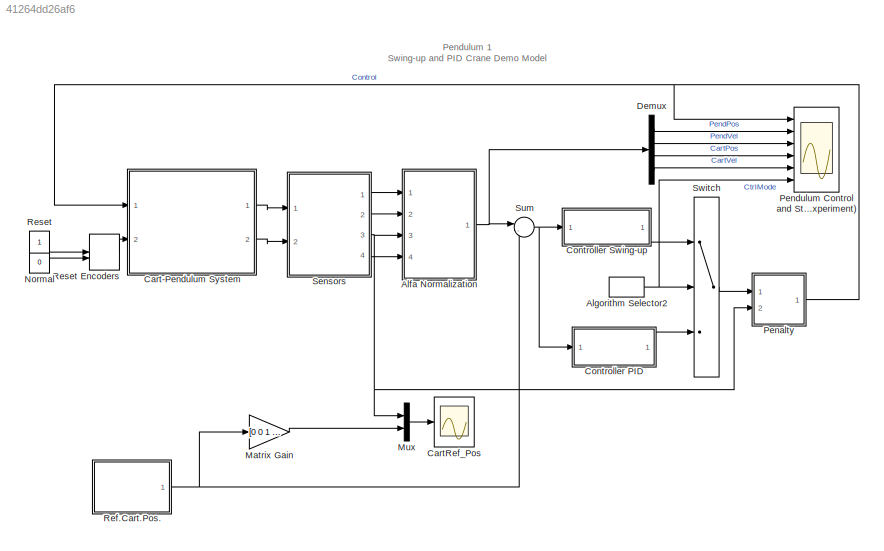
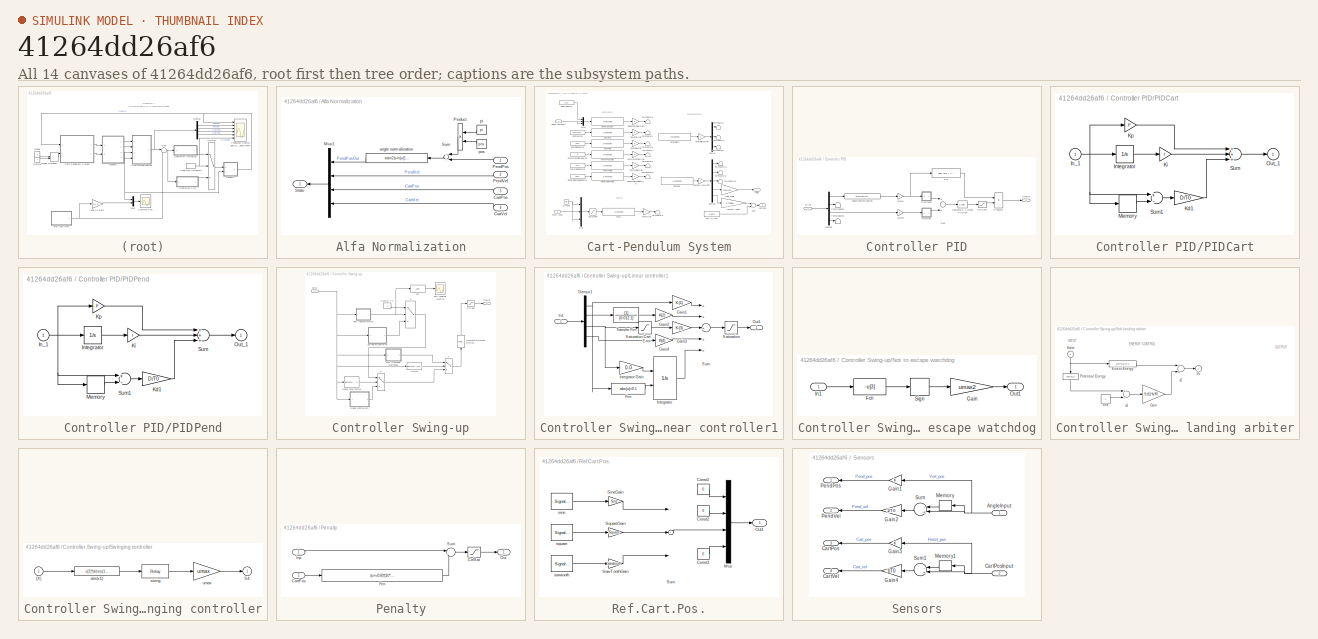
[diagram: thumbnail index - all 14 canvases of the model, root first then tree order]
MODEL slx_41264dd26af6
KIND model
CONFIG AbsTol = 1e-6
CONFIG FixedStep = 0.01
CONFIG MaxStep = auto
CONFIG MinStep = auto
CONFIG RelTol = 1e-3
CONFIG SampleTimeConstraint = Unconstrained
CONFIG Solver = ode5
CONFIG SolverMode = SingleTasking
CONFIG SolverName = ode5
CONFIG StartTime = 0.0
CONFIG StopTime = 9999
BLOCK [SubSystem] Alfa Normalization
  Ports = [4, 1]
  RequestExecContextInheritance = off
BLOCK [Inport] Alfa Normalization/CartPos
  IconDisplay = Port number
  Port = 3
BLOCK [Inport] Alfa Normalization/CartVel
  IconDisplay = Port number
  Port = 4
BLOCK [Mux] Alfa Normalization/Mux1
  Ports = [4, 1]
BLOCK [Inport] Alfa Normalization/PendPos
  IconDisplay = Port number
BLOCK [Inport] Alfa Normalization/PendVel
  IconDisplay = Port number
  Port = 2
BLOCK [Product] Alfa Normalization/Product
  Ports = [2, 1]
  RndMeth = Floor
BLOCK [Outport] Alfa Normalization/State
  IconDisplay = Port number
  InitialOutput = 0
BLOCK [Sum] Alfa Normalization/Sum
  Ports = [2, 1]
BLOCK [Fcn] Alfa Normalization/angle normalization
  Expr = atan2(sin(u[1]),cos(u[1]))
BLOCK [Constant] Alfa Normalization/pi
  Value = pi
BLOCK [Constant] Alfa Normalization/pos
  Value = pos
BLOCK [DiscretePulseGenerator] Algorithm Selector2
  Period = 60
  Ports = [0, 1]
  PulseType = Time based
  PulseWidth = 85
  SampleTime = 0.01
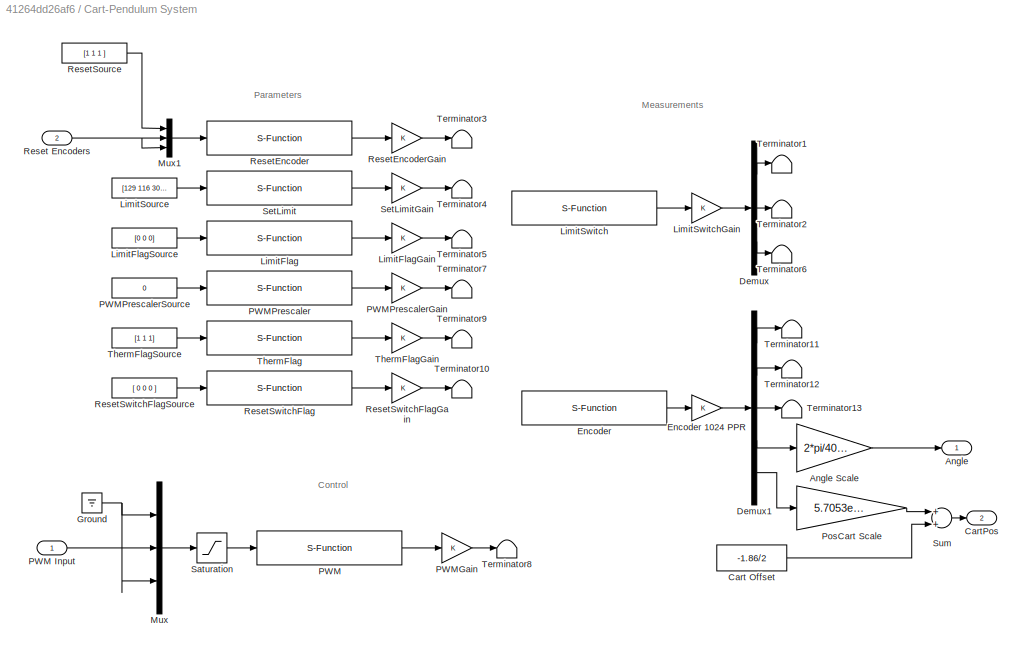
BLOCK [SubSystem] Cart-Pendulum System
  Ports = [2, 2]
  RequestExecContextInheritance = off
BLOCK [Outport] Cart-Pendulum System/Angle
  IconDisplay = Port number
BLOCK [Gain] Cart-Pendulum System/Angle Scale
  Gain = 2*pi/4096
  SaturateOnIntegerOverflow = off
BLOCK [Constant] Cart-Pendulum System/Cart Offset
  Value = -1.86/2
BLOCK [Outport] Cart-Pendulum System/CartPos
  IconDisplay = Port number
  Port = 2
BLOCK [Demux] Cart-Pendulum System/Demux
  Outputs = 3
  Ports = [1, 3]
BLOCK [Demux] Cart-Pendulum System/Demux1
  Outputs = 5
  Ports = [1, 5]
BLOCK [S-Function] Cart-Pendulum System/Encoder
  FunctionName = P1_Encoder
  Parameters = BaseAddress, T0
  Ports = [0, 1]
BLOCK [Gain] Cart-Pendulum System/Encoder 1024 PPR
BLOCK [Ground] Cart-Pendulum System/Ground
BLOCK [S-Function] Cart-Pendulum System/LimitFlag
  FunctionName = P1_LimitFlag
  Parameters = BaseAddress, T0
  Ports = [1, 1]
BLOCK [Gain] Cart-Pendulum System/LimitFlagGain
BLOCK [Constant] Cart-Pendulum System/LimitFlagSource
  Value = [0 0 0]
BLOCK [Constant] Cart-Pendulum System/LimitSource
  Value = [129 116 300]
BLOCK [S-Function] Cart-Pendulum System/LimitSwitch
  FunctionName = P1_Switch
  Parameters = BaseAddress, T0
  Ports = [0, 1]
BLOCK [Gain] Cart-Pendulum System/LimitSwitchGain
BLOCK [Mux] Cart-Pendulum System/Mux
  Inputs = 3
  Ports = [3, 1]
BLOCK [Mux] Cart-Pendulum System/Mux1
  DisplayOption = bar
  Inputs = [3 1 1]
  Ports = [3, 1]
BLOCK [S-Function] Cart-Pendulum System/PWM
  FunctionName = P1_PWM
  Parameters = BaseAddress, T0
  Ports = [1, 1]
BLOCK [Inport] Cart-Pendulum System/PWM Input
  IconDisplay = Port number
BLOCK [Gain] Cart-Pendulum System/PWMGain
BLOCK [S-Function] Cart-Pendulum System/PWMPrescaler
  FunctionName = P1_PWMPrescaler
  Parameters = BaseAddress, T0
  Ports = [1, 1]
BLOCK [Gain] Cart-Pendulum System/PWMPrescalerGain
BLOCK [Constant] Cart-Pendulum System/PWMPrescalerSource
  Value = 0
BLOCK [Gain] Cart-Pendulum System/PosCart Scale
  Gain = 5.7053e-005
  SaturateOnIntegerOverflow = off
BLOCK [Inport] Cart-Pendulum System/Reset Encoders
  IconDisplay = Port number
  Port = 2
BLOCK [S-Function] Cart-Pendulum System/ResetEncoder
  FunctionName = P1_ResetEncoder
  Parameters = BaseAddress, T0
  Ports = [1, 1]
BLOCK [Gain] Cart-Pendulum System/ResetEncoderGain
BLOCK [Constant] Cart-Pendulum System/ResetSource
  Value = [1 1 1 ]
BLOCK [S-Function] Cart-Pendulum System/ResetSwitchFlag 
  FunctionName = P1_ResetSwitchFlag
  Parameters = BaseAddress, T0
  Ports = [1, 1]
BLOCK [Gain] Cart-Pendulum System/ResetSwitchFlagGain
BLOCK [Constant] Cart-Pendulum System/ResetSwitchFlagSource
  Value = [ 0 0 0 ]
BLOCK [Saturate] Cart-Pendulum System/Saturation
  InputPortMap = u0
  Ports = [1, 1]
BLOCK [S-Function] Cart-Pendulum System/SetLimit
  FunctionName = P1_SetLimit
  Parameters = BaseAddress, T0
  Ports = [1, 1]
BLOCK [Gain] Cart-Pendulum System/SetLimitGain
BLOCK [Sum] Cart-Pendulum System/Sum
  Ports = [2, 1]
BLOCK [Terminator] Cart-Pendulum System/Terminator1
BLOCK [Terminator] Cart-Pendulum System/Terminator10
BLOCK [Terminator] Cart-Pendulum System/Terminator11
BLOCK [Terminator] Cart-Pendulum System/Terminator12
BLOCK [Terminator] Cart-Pendulum System/Terminator13
BLOCK [Terminator] Cart-Pendulum System/Terminator2
BLOCK [Terminator] Cart-Pendulum System/Terminator3
BLOCK [Terminator] Cart-Pendulum System/Terminator4
BLOCK [Terminator] Cart-Pendulum System/Terminator5
BLOCK [Terminator] Cart-Pendulum System/Terminator6
BLOCK [Terminator] Cart-Pendulum System/Terminator7
BLOCK [Terminator] Cart-Pendulum System/Terminator8
BLOCK [Terminator] Cart-Pendulum System/Terminator9
BLOCK [S-Function] Cart-Pendulum System/ThermFlag 
  FunctionName = P1_ThermFlag
  Parameters = BaseAddress, T0
  Ports = [1, 1]
BLOCK [Gain] Cart-Pendulum System/ThermFlagGain
BLOCK [Constant] Cart-Pendulum System/ThermFlagSource
  Value = [1 1 1]
BLOCK [Scope] CartRef_Pos
  DataFormat = StructureWithTime
  ExtModeUploadOption = log
  Floating = off
  MaxDataPoints = 50000
  NumInputPorts = 1
  Ports = [1]
  SampleTime = 0
  SaveName = Cart_refpos
  SaveToWorkspace = on
  TimeRange = 60
  YMax = 0.55
  YMin = -0.3
BLOCK [SubSystem] Controller PID
  Ports = [1, 1]
  RequestExecContextInheritance = off
BLOCK [Outport] Controller PID/Control
  IconDisplay = Port number
  InitialOutput = 0
BLOCK [Reference] Controller PID/Coulomb & Viscous Friction  REF=simulink/Discontinuities/Coulomb &
Viscous Friction
  Ports = [1, 1]
  SourceBlock = simulink/Discontinuities/Coulomb &\nViscous Friction
  SourceType = Coulombic and Viscous Friction
  gain = 1
  offset = Friction
BLOCK [Saturate] Controller PID/CtrlSat1
  InputPortMap = u0
  LowerLimit = -Umax
  Ports = [1, 1]
  UpperLimit = Umax
BLOCK [Demux] Controller PID/Demux
  Ports = [1, 4]
BLOCK [Inport] Controller PID/Error
  IconDisplay = Port number
BLOCK [Fcn] Controller PID/Fcn
  Expr = abs( u[1] ) < zone
BLOCK [Gain] Controller PID/Gain1
BLOCK [Gain] Controller PID/Gain3
BLOCK [SubSystem] Controller PID/PIDCart
  Ports = [1, 1]
  RequestExecContextInheritance = off
BLOCK [Inport] Controller PID/PIDCart/In_1
  IconDisplay = Port number
BLOCK [Integrator] Controller PID/PIDCart/Integrator
  LimitOutput = on
  LowerSaturationLimit = -1
  Ports = [1, 1]
  UpperSaturationLimit = 1
BLOCK [Gain] Controller PID/PIDCart/Kd1
  Gain = D/T0
BLOCK [Gain] Controller PID/PIDCart/Ki
  Gain = I
BLOCK [Gain] Controller PID/PIDCart/Kp
  Gain = P
BLOCK [Memory] Controller PID/PIDCart/Memory
BLOCK [Outport] Controller PID/PIDCart/Out_1
  IconDisplay = Port number
  InitialOutput = 0
BLOCK [Sum] Controller PID/PIDCart/Sum
  Inputs = +++
  Ports = [3, 1]
BLOCK [Sum] Controller PID/PIDCart/Sum1
  Inputs = +-
  Ports = [2, 1]
BLOCK [SubSystem] Controller PID/PIDPend
  Ports = [1, 1]
  RequestExecContextInheritance = off
BLOCK [Inport] Controller PID/PIDPend/In_1
  IconDisplay = Port number
BLOCK [Integrator] Controller PID/PIDPend/Integrator
  LimitOutput = on
  LowerSaturationLimit = -1
  Ports = [1, 1]
  UpperSaturationLimit = 1
BLOCK [Gain] Controller PID/PIDPend/Kd1
  Gain = D/T0
BLOCK [Gain] Controller PID/PIDPend/Ki
  Gain = I
BLOCK [Gain] Controller PID/PIDPend/Kp
  Gain = P
BLOCK [Memory] Controller PID/PIDPend/Memory
BLOCK [Outport] Controller PID/PIDPend/Out_1
  IconDisplay = Port number
  InitialOutput = 0
BLOCK [Sum] Controller PID/PIDPend/Sum
  Inputs = +++
  Ports = [3, 1]
BLOCK [Sum] Controller PID/PIDPend/Sum1
  Inputs = +-
  Ports = [2, 1]
BLOCK [Product] Controller PID/Product1
  Ports = [2, 1]
  RndMeth = Floor
BLOCK [Sum] Controller PID/Sum
  Ports = [2, 1]
BLOCK [Terminator] Controller PID/Terminator1
BLOCK [Terminator] Controller PID/Terminator2
BLOCK [Fcn] Controller PID/angle normalization
  Expr = atan2(sin(u+pi),cos(u+pi))
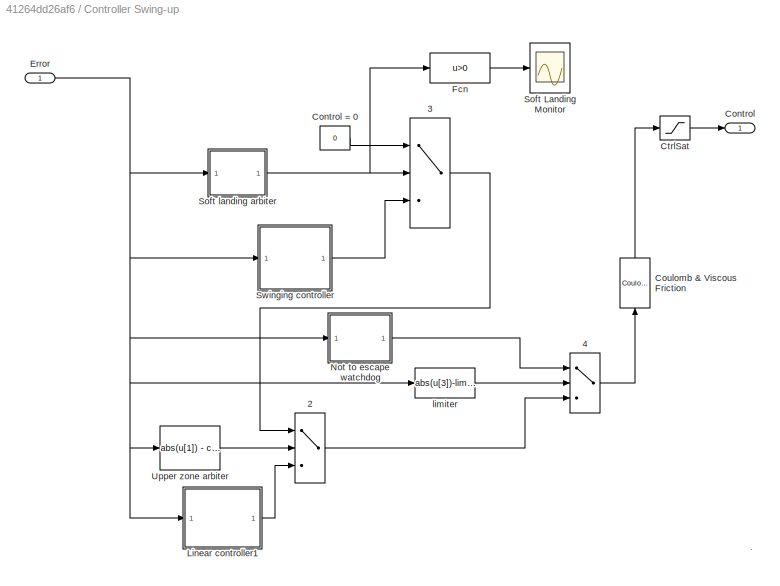
BLOCK [SubSystem] Controller Swing-up
  Ports = [1, 1]
  RequestExecContextInheritance = off
BLOCK [Switch] Controller Swing-up/2
BLOCK [Switch] Controller Swing-up/3
BLOCK [Switch] Controller Swing-up/4
BLOCK [Outport] Controller Swing-up/Control
  IconDisplay = Port number
  InitialOutput = 0
BLOCK [Constant] Controller Swing-up/Control = 0
  Value = 0
BLOCK [Reference] Controller Swing-up/Coulomb & Viscous Friction  REF=simulink/Discontinuities/Coulomb &
Viscous Friction
  Ports = [1, 1]
  SourceBlock = simulink/Discontinuities/Coulomb &\nViscous Friction
  SourceType = Coulombic and Viscous Friction
  gain = 1
  offset = 0.01
BLOCK [Saturate] Controller Swing-up/CtrlSat
  InputPortMap = u0
  LowerLimit = -1
  Ports = [1, 1]
  UpperLimit = 1
BLOCK [Inport] Controller Swing-up/Error
  IconDisplay = Port number
BLOCK [Fcn] Controller Swing-up/Fcn
  Expr = u>0
BLOCK [SubSystem] Controller Swing-up/Linear controller1
  Ports = [1, 1]
  RequestExecContextInheritance = off
BLOCK [Demux] Controller Swing-up/Linear controller1/Demux1
  Ports = [1, 4]
BLOCK [Fcn] Controller Swing-up/Linear controller1/Fcn
  Expr = abs(u)<0.1
BLOCK [Gain] Controller Swing-up/Linear controller1/Gain1
  Gain = K(1)
BLOCK [Gain] Controller Swing-up/Linear controller1/Gain2
  Gain = K(2)
BLOCK [Gain] Controller Swing-up/Linear controller1/Gain3
  Gain = K(3)
BLOCK [Gain] Controller Swing-up/Linear controller1/Gain4
  Gain = K(4)
BLOCK [Inport] Controller Swing-up/Linear controller1/In1
  IconDisplay = Port number
BLOCK [Integrator] Controller Swing-up/Linear controller1/Integrator
  ExternalReset = rising
  LimitOutput = on
  LowerSaturationLimit = -0.2
  Ports = [2, 1]
  UpperSaturationLimit = 0.2
BLOCK [Gain] Controller Swing-up/Linear controller1/Integrator Gain
  Gain = 0.0
BLOCK [Outport] Controller Swing-up/Linear controller1/Out1
  IconDisplay = Port number
  InitialOutput = 0
BLOCK [Saturate] Controller Swing-up/Linear controller1/Saturation
  InputPortMap = u0
  LowerLimit = -umax1
  Ports = [1, 1]
  UpperLimit = umax1
BLOCK [Saturate] Controller Swing-up/Linear controller1/Saturation Cart Error
  InputPortMap = u0
  LowerLimit = -0.1
  Ports = [1, 1]
  UpperLimit = 0.1
BLOCK [Sum] Controller Swing-up/Linear controller1/Sum
  Inputs = +++++
  Ports = [5, 1]
BLOCK [TransferFcn] Controller Swing-up/Linear controller1/Transfer Fcn
  Denominator = [0.012 1]
BLOCK [SubSystem] Controller Swing-up/Not to escape watchdog
  Ports = [1, 1]
  RequestExecContextInheritance = off
BLOCK [Fcn] Controller Swing-up/Not to escape watchdog/Fcn
  Expr = -u[3]
BLOCK [Gain] Controller Swing-up/Not to escape watchdog/Gain
  Gain = umax2
BLOCK [Inport] Controller Swing-up/Not to escape watchdog/In1
  IconDisplay = Port number
BLOCK [Outport] Controller Swing-up/Not to escape watchdog/Out1
  IconDisplay = Port number
  InitialOutput = 0
BLOCK [Signum] Controller Swing-up/Not to escape watchdog/Sign
BLOCK [Scope] Controller Swing-up/Soft Landing Monitor
  DataFormat = StructureWithTime
  ExtModeLoggingTrig = on
  ExtModeUploadOption = log
  Floating = off
  MaxDataPoints = 50000
  NumInputPorts = 1
  Ports = [1]
  SampleTime = 0
  SaveToWorkspace = on
  TimeRange = 60
  YMax = 1
  YMin = 0
BLOCK [SubSystem] Controller Swing-up/Soft landing arbiter
  Ports = [1, 1]
  RequestExecContextInheritance = off
  ShowPortLabels = none
BLOCK [Gain] Controller Swing-up/Soft landing arbiter/Gain
  Gain = 9.81*k*R
BLOCK [Fcn] Controller Swing-up/Soft landing arbiter/Kinetic Energy
  Expr = u[2]*u[2]*0.5
BLOCK [Fcn] Controller Swing-up/Soft landing arbiter/Potential Energy
  Expr = cos(u[1])
BLOCK [Outport] Controller Swing-up/Soft landing arbiter/S5
  IconDisplay = Port number
  InitialOutput = 0
BLOCK [Inport] Controller Swing-up/Soft landing arbiter/State
  IconDisplay = Port number
BLOCK [Constant] Controller Swing-up/Soft landing arbiter/one 
BLOCK [Sum] Controller Swing-up/Soft landing arbiter/s2
  Ports = [2, 1]
BLOCK [Sum] Controller Swing-up/Soft landing arbiter/s3
  Inputs = +-
  Ports = [2, 1]
BLOCK [SubSystem] Controller Swing-up/Swinging controller
  Ports = [1, 1]
  RequestExecContextInheritance = off
  ShowPortLabels = none
BLOCK [Outport] Controller Swing-up/Swinging controller/S4
  IconDisplay = Port number
  InitialOutput = 0
BLOCK [Inport] Controller Swing-up/Swinging controller/[X]
  IconDisplay = Port number
BLOCK [Fcn] Controller Swing-up/Swinging controller/abs(x1)
  Expr = u[2]*(abs(u[1])-pi/2)
BLOCK [Relay] Controller Swing-up/Swinging controller/swing
  OffOutputValue = -1
BLOCK [Gain] Controller Swing-up/Swinging controller/umax
  Gain = umax
BLOCK [Fcn] Controller Swing-up/Upper zone arbiter
  Expr = abs(u[1]) - cone
BLOCK [Fcn] Controller Swing-up/limiter
  Expr = abs(u[3])-limit
BLOCK [Demux] Demux
  Ports = [1, 4]
BLOCK [Gain] Matrix Gain
  Gain = [0 0 1 0]
  Multiplication = Matrix(K*u)
BLOCK [Mux] Mux
  DisplayOption = bar
  Inputs = 2
  Ports = [2, 1]
BLOCK [Constant] Normal
  Value = 0
BLOCK [SubSystem] Penalty
  Ports = [2, 1]
  RequestExecContextInheritance = off
BLOCK [Inport] Penalty/CartPos
  IconDisplay = Port number
  Port = 2
BLOCK [Saturate] Penalty/CtrlSat
  InputPortMap = u0
  LowerLimit = -0.4
  Ports = [1, 1]
  UpperLimit = 0.4
BLOCK [Fcn] Penalty/Fcn
  Expr = (u>=0.8)*(10*(u-0.8))^3 + (u<=-0.8)*(10*(u+0.8))^3
BLOCK [Inport] Penalty/Inp
  IconDisplay = Port number
BLOCK [Outport] Penalty/Out
  IconDisplay = Port number
BLOCK [Sum] Penalty/Sum
  IconShape = round
  Inputs = |++
  Ports = [2, 1]
BLOCK [Scope] Pendulum Control and States (Experiment)
  DataFormat = StructureWithTime
  ExtModeUploadOption = log
  Floating = off
  LimitDataPoints = off
  MaxDataPoints = 50000
  NumInputPorts = 6
  Ports = [6]
  SampleTime = 0
  SaveName = P1_Data
  SaveToWorkspace = on
  TimeRange = 10
  YMax = 0.4~4~0.75~2.5~400~1.05
  YMin = -0.4~-4~-0.75~-1.5~-50~0.95
  ZoomMode = xonly
BLOCK [SubSystem] Ref.Cart.Pos.
  Ports = [0, 1]
  RequestExecContextInheritance = off
BLOCK [Constant] Ref.Cart.Pos./Const1
  Value = 0
BLOCK [Constant] Ref.Cart.Pos./Const2
  Value = 0
BLOCK [Constant] Ref.Cart.Pos./Const3
  Value = 0
BLOCK [Mux] Ref.Cart.Pos./Mux
  Ports = [4, 1]
BLOCK [Outport] Ref.Cart.Pos./Out1
  IconDisplay = Port number
  InitialOutput = 0
BLOCK [Gain] Ref.Cart.Pos./SawToothGain
  Gain = Sawtooth
BLOCK [Gain] Ref.Cart.Pos./SineGain
  Gain = Sine
BLOCK [Gain] Ref.Cart.Pos./SquareGain
  Gain = Square
BLOCK [Sum] Ref.Cart.Pos./Sum
  Inputs = +++
  Ports = [3, 1]
BLOCK [SignalGenerator] Ref.Cart.Pos./sawtooth
  Amplitude = Amplitude
  Frequency = Frequency
  Ports = [0, 1]
  WaveForm = sawtooth
BLOCK [SignalGenerator] Ref.Cart.Pos./sine
  Amplitude = Amplitude
  Frequency = Frequency
  Ports = [0, 1]
BLOCK [SignalGenerator] Ref.Cart.Pos./square
  Amplitude = Amplitude
  Frequency = Frequency
  Ports = [0, 1]
  WaveForm = square
BLOCK [Constant] Reset
BLOCK [ManualSwitch] Reset Encoders
  CurrentSetting = 0
BLOCK [SubSystem] Sensors
  Ports = [2, 4]
  RequestExecContextInheritance = off
BLOCK [Inport] Sensors/AngleInput
  IconDisplay = Port number
BLOCK [Outport] Sensors/CartPos
  IconDisplay = Port number
  InitialOutput = 0
  Port = 3
BLOCK [Inport] Sensors/CartPosInput
  IconDisplay = Port number
  Port = 2
BLOCK [Outport] Sensors/CartVel
  IconDisplay = Port number
  InitialOutput = 0
  Port = 4
BLOCK [Gain] Sensors/Gain1
BLOCK [Gain] Sensors/Gain2
  Gain = 1/T0
BLOCK [Gain] Sensors/Gain3
BLOCK [Gain] Sensors/Gain4
  Gain = 1/T0
BLOCK [Memory] Sensors/Memory
BLOCK [Memory] Sensors/Memory1
BLOCK [Outport] Sensors/PendPos
  IconDisplay = Port number
  InitialOutput = 0
BLOCK [Outport] Sensors/PendVel
  IconDisplay = Port number
  InitialOutput = 0
  Port = 2
BLOCK [Sum] Sensors/Sum
  Inputs = -+
  Ports = [2, 1]
BLOCK [Sum] Sensors/Sum1
  Inputs = -+
  Ports = [2, 1]
BLOCK [Sum] Sum
  IconShape = round
  Inputs = |-+
  Ports = [2, 1]
BLOCK [Switch] Switch
  Threshold = 0.5
ANNOTATION (root): Pendulum 1 Swing-up and PID Crane Demo Model
ANNOTATION Cart-Pendulum System: Control
ANNOTATION Cart-Pendulum System: Measurements
ANNOTATION Cart-Pendulum System: Parameters
ANNOTATION Controller Swing-up: .
ANNOTATION Controller Swing-up/Soft landing arbiter: ENERGY CONTROL
ANNOTATION Controller Swing-up/Soft landing arbiter: INPUT
ANNOTATION Controller Swing-up/Soft landing arbiter: OUTPUT
LINE Alfa Normalization/CartPos:1 -> Alfa Normalization/Mux1:3
LINE Alfa Normalization/CartVel:1 -> Alfa Normalization/Mux1:4
LINE Alfa Normalization/Mux1:1 -> Alfa Normalization/State:1
LINE Alfa Normalization/PendPos:1 -> Alfa Normalization/Sum:2
LINE Alfa Normalization/PendVel:1 -> Alfa Normalization/Mux1:2
LINE Alfa Normalization/Product:1 -> Alfa Normalization/Sum:1
LINE Alfa Normalization/Sum:1 -> Alfa Normalization/angle normalization:1
LINE Alfa Normalization/angle normalization:1 -> Alfa Normalization/Mux1:1
LINE Alfa Normalization/pi:1 -> Alfa Normalization/Product:1
LINE Alfa Normalization/pos:1 -> Alfa Normalization/Product:2
NET Alfa Normalization:1 -> Demux:1, Sum:1
NET Algorithm Selector2:1 -> Pendulum Control and States (Experiment):6, Switch:2
LINE Cart-Pendulum System/Angle Scale:1 -> Cart-Pendulum System/Angle:1
LINE Cart-Pendulum System/Cart Offset:1 -> Cart-Pendulum System/Sum:2
LINE Cart-Pendulum System/Demux1:1 -> Cart-Pendulum System/Terminator11:1
LINE Cart-Pendulum System/Demux1:2 -> Cart-Pendulum System/Terminator12:1
LINE Cart-Pendulum System/Demux1:3 -> Cart-Pendulum System/Terminator13:1
LINE Cart-Pendulum System/Demux1:4 -> Cart-Pendulum System/Angle Scale:1
LINE Cart-Pendulum System/Demux1:5 -> Cart-Pendulum System/PosCart Scale:1
LINE Cart-Pendulum System/Demux:1 -> Cart-Pendulum System/Terminator1:1
LINE Cart-Pendulum System/Demux:2 -> Cart-Pendulum System/Terminator2:1
LINE Cart-Pendulum System/Demux:3 -> Cart-Pendulum System/Terminator6:1
LINE Cart-Pendulum System/Encoder 1024 PPR:1 -> Cart-Pendulum System/Demux1:1
LINE Cart-Pendulum System/Encoder:1 -> Cart-Pendulum System/Encoder 1024 PPR:1
NET Cart-Pendulum System/Ground:1 -> Cart-Pendulum System/Mux:1, Cart-Pendulum System/Mux:3
LINE Cart-Pendulum System/LimitFlag:1 -> Cart-Pendulum System/LimitFlagGain:1
LINE Cart-Pendulum System/LimitFlagGain:1 -> Cart-Pendulum System/Terminator5:1
LINE Cart-Pendulum System/LimitFlagSource:1 -> Cart-Pendulum System/LimitFlag:1
LINE Cart-Pendulum System/LimitSource:1 -> Cart-Pendulum System/SetLimit:1
LINE Cart-Pendulum System/LimitSwitch:1 -> Cart-Pendulum System/LimitSwitchGain:1
LINE Cart-Pendulum System/LimitSwitchGain:1 -> Cart-Pendulum System/Demux:1
LINE Cart-Pendulum System/Mux1:1 -> Cart-Pendulum System/ResetEncoder:1
LINE Cart-Pendulum System/Mux:1 -> Cart-Pendulum System/Saturation:1
LINE Cart-Pendulum System/PWM Input:1 -> Cart-Pendulum System/Mux:2
LINE Cart-Pendulum System/PWM:1 -> Cart-Pendulum System/PWMGain:1
LINE Cart-Pendulum System/PWMGain:1 -> Cart-Pendulum System/Terminator8:1
LINE Cart-Pendulum System/PWMPrescaler:1 -> Cart-Pendulum System/PWMPrescalerGain:1
LINE Cart-Pendulum System/PWMPrescalerGain:1 -> Cart-Pendulum System/Terminator7:1
LINE Cart-Pendulum System/PWMPrescalerSource:1 -> Cart-Pendulum System/PWMPrescaler:1
LINE Cart-Pendulum System/PosCart Scale:1 -> Cart-Pendulum System/Sum:1
NET Cart-Pendulum System/Reset Encoders:1 -> Cart-Pendulum System/Mux1:2, Cart-Pendulum System/Mux1:3
LINE Cart-Pendulum System/ResetEncoder:1 -> Cart-Pendulum System/ResetEncoderGain:1
LINE Cart-Pendulum System/ResetEncoderGain:1 -> Cart-Pendulum System/Terminator3:1
LINE Cart-Pendulum System/ResetSource:1 -> Cart-Pendulum System/Mux1:1
LINE Cart-Pendulum System/ResetSwitchFlag :1 -> Cart-Pendulum System/ResetSwitchFlagGain:1
LINE Cart-Pendulum System/ResetSwitchFlagGain:1 -> Cart-Pendulum System/Terminator10:1
LINE Cart-Pendulum System/ResetSwitchFlagSource:1 -> Cart-Pendulum System/ResetSwitchFlag :1
LINE Cart-Pendulum System/Saturation:1 -> Cart-Pendulum System/PWM:1
LINE Cart-Pendulum System/SetLimit:1 -> Cart-Pendulum System/SetLimitGain:1
LINE Cart-Pendulum System/SetLimitGain:1 -> Cart-Pendulum System/Terminator4:1
LINE Cart-Pendulum System/Sum:1 -> Cart-Pendulum System/CartPos:1
LINE Cart-Pendulum System/ThermFlag :1 -> Cart-Pendulum System/ThermFlagGain:1
LINE Cart-Pendulum System/ThermFlagGain:1 -> Cart-Pendulum System/Terminator9:1
LINE Cart-Pendulum System/ThermFlagSource:1 -> Cart-Pendulum System/ThermFlag :1
LINE Cart-Pendulum System:1 -> Sensors:1
LINE Cart-Pendulum System:2 -> Sensors:2
LINE Controller PID/Coulomb & Viscous Friction:1 -> Controller PID/CtrlSat1:1
LINE Controller PID/CtrlSat1:1 -> Controller PID/Product1:2
LINE Controller PID/Demux:1 -> Controller PID/angle normalization:1
LINE Controller PID/Demux:2 -> Controller PID/Terminator2:1
LINE Controller PID/Demux:3 -> Controller PID/Gain3:1
LINE Controller PID/Demux:4 -> Controller PID/Terminator1:1
LINE Controller PID/Error:1 -> Controller PID/Demux:1
LINE Controller PID/Fcn:1 -> Controller PID/Product1:1
NET Controller PID/Gain1:1 -> Controller PID/Fcn:1, Controller PID/PIDPend:1
LINE Controller PID/Gain3:1 -> Controller PID/PIDCart:1
NET Controller PID/PIDCart/In_1:1 -> Controller PID/PIDCart/Integrator:1, Controller PID/PIDCart/Kp:1, Controller PID/PIDCart/Memory:1, Controller PID/PIDCart/Sum1:1
LINE Controller PID/PIDCart/Integrator:1 -> Controller PID/PIDCart/Ki:1
LINE Controller PID/PIDCart/Kd1:1 -> Controller PID/PIDCart/Sum:3
LINE Controller PID/PIDCart/Ki:1 -> Controller PID/PIDCart/Sum:2
LINE Controller PID/PIDCart/Kp:1 -> Controller PID/PIDCart/Sum:1
LINE Controller PID/PIDCart/Memory:1 -> Controller PID/PIDCart/Sum1:2
LINE Controller PID/PIDCart/Sum1:1 -> Controller PID/PIDCart/Kd1:1
LINE Controller PID/PIDCart/Sum:1 -> Controller PID/PIDCart/Out_1:1
LINE Controller PID/PIDCart:1 -> Controller PID/Sum:2
NET Controller PID/PIDPend/In_1:1 -> Controller PID/PIDPend/Integrator:1, Controller PID/PIDPend/Kp:1, Controller PID/PIDPend/Memory:1, Controller PID/PIDPend/Sum1:1
LINE Controller PID/PIDPend/Integrator:1 -> Controller PID/PIDPend/Ki:1
LINE Controller PID/PIDPend/Kd1:1 -> Controller PID/PIDPend/Sum:3
LINE Controller PID/PIDPend/Ki:1 -> Controller PID/PIDPend/Sum:2
LINE Controller PID/PIDPend/Kp:1 -> Controller PID/PIDPend/Sum:1
LINE Controller PID/PIDPend/Memory:1 -> Controller PID/PIDPend/Sum1:2
LINE Controller PID/PIDPend/Sum1:1 -> Controller PID/PIDPend/Kd1:1
LINE Controller PID/PIDPend/Sum:1 -> Controller PID/PIDPend/Out_1:1
LINE Controller PID/PIDPend:1 -> Controller PID/Sum:1
LINE Controller PID/Product1:1 -> Controller PID/Control:1
LINE Controller PID/Sum:1 -> Controller PID/Coulomb & Viscous Friction:1
LINE Controller PID/angle normalization:1 -> Controller PID/Gain1:1
LINE Controller PID:1 -> Switch:3
LINE Controller Swing-up/2:1 -> Controller Swing-up/4:3
LINE Controller Swing-up/3:1 -> Controller Swing-up/2:1
LINE Controller Swing-up/4:1 -> Controller Swing-up/Coulomb & Viscous Friction:1
LINE Controller Swing-up/Control = 0:1 -> Controller Swing-up/3:1
LINE Controller Swing-up/Coulomb & Viscous Friction:1 -> Controller Swing-up/CtrlSat:1
LINE Controller Swing-up/CtrlSat:1 -> Controller Swing-up/Control:1
NET Controller Swing-up/Error:1 -> Controller Swing-up/Linear controller1:1, Controller Swing-up/Not to escape watchdog:1, Controller Swing-up/Soft landing arbiter:1, Controller Swing-up/Swinging controller:1, Controller Swing-up/Upper zone arbiter:1, Controller Swing-up/limiter:1
LINE Controller Swing-up/Fcn:1 -> Controller Swing-up/Soft Landing Monitor:1
NET Controller Swing-up/Linear controller1/Demux1:1 -> Controller Swing-up/Linear controller1/Fcn:1, Controller Swing-up/Linear controller1/Gain1:1
LINE Controller Swing-up/Linear controller1/Demux1:2 -> Controller Swing-up/Linear controller1/Transfer Fcn:1
NET Controller Swing-up/Linear controller1/Demux1:3 -> Controller Swing-up/Linear controller1/Integrator Gain:1, Controller Swing-up/Linear controller1/Saturation Cart Error:1
LINE Controller Swing-up/Linear controller1/Demux1:4 -> Controller Swing-up/Linear controller1/Gain4:1
LINE Controller Swing-up/Linear controller1/Fcn:1 -> Controller Swing-up/Linear controller1/Integrator:2
LINE Controller Swing-up/Linear controller1/Gain1:1 -> Controller Swing-up/Linear controller1/Sum:1
LINE Controller Swing-up/Linear controller1/Gain2:1 -> Controller Swing-up/Linear controller1/Sum:2
LINE Controller Swing-up/Linear controller1/Gain3:1 -> Controller Swing-up/Linear controller1/Sum:3
LINE Controller Swing-up/Linear controller1/Gain4:1 -> Controller Swing-up/Linear controller1/Sum:4
LINE Controller Swing-up/Linear controller1/In1:1 -> Controller Swing-up/Linear controller1/Demux1:1
LINE Controller Swing-up/Linear controller1/Integrator Gain:1 -> Controller Swing-up/Linear controller1/Integrator:1
LINE Controller Swing-up/Linear controller1/Integrator:1 -> Controller Swing-up/Linear controller1/Sum:5
LINE Controller Swing-up/Linear controller1/Saturation Cart Error:1 -> Controller Swing-up/Linear controller1/Gain3:1
LINE Controller Swing-up/Linear controller1/Saturation:1 -> Controller Swing-up/Linear controller1/Out1:1
LINE Controller Swing-up/Linear controller1/Sum:1 -> Controller Swing-up/Linear controller1/Saturation:1
LINE Controller Swing-up/Linear controller1/Transfer Fcn:1 -> Controller Swing-up/Linear controller1/Gain2:1
LINE Controller Swing-up/Linear controller1:1 -> Controller Swing-up/2:3
LINE Controller Swing-up/Not to escape watchdog/Fcn:1 -> Controller Swing-up/Not to escape watchdog/Sign:1
LINE Controller Swing-up/Not to escape watchdog/Gain:1 -> Controller Swing-up/Not to escape watchdog/Out1:1
LINE Controller Swing-up/Not to escape watchdog/In1:1 -> Controller Swing-up/Not to escape watchdog/Fcn:1
LINE Controller Swing-up/Not to escape watchdog/Sign:1 -> Controller Swing-up/Not to escape watchdog/Gain:1
LINE Controller Swing-up/Not to escape watchdog:1 -> Controller Swing-up/4:1
LINE Controller Swing-up/Soft landing arbiter/Gain:1 -> Controller Swing-up/Soft landing arbiter/s2:2
LINE Controller Swing-up/Soft landing arbiter/Kinetic Energy:1 -> Controller Swing-up/Soft landing arbiter/s2:1
LINE Controller Swing-up/Soft landing arbiter/Potential Energy:1 -> Controller Swing-up/Soft landing arbiter/s3:1
NET Controller Swing-up/Soft landing arbiter/State:1 -> Controller Swing-up/Soft landing arbiter/Kinetic Energy:1, Controller Swing-up/Soft landing arbiter/Potential Energy:1
LINE Controller Swing-up/Soft landing arbiter/one :1 -> Controller Swing-up/Soft landing arbiter/s3:2
LINE Controller Swing-up/Soft landing arbiter/s2:1 -> Controller Swing-up/Soft landing arbiter/S5:1
LINE Controller Swing-up/Soft landing arbiter/s3:1 -> Controller Swing-up/Soft landing arbiter/Gain:1
NET Controller Swing-up/Soft landing arbiter:1 -> Controller Swing-up/3:2, Controller Swing-up/Fcn:1
LINE Controller Swing-up/Swinging controller/[X]:1 -> Controller Swing-up/Swinging controller/abs(x1):1
LINE Controller Swing-up/Swinging controller/abs(x1):1 -> Controller Swing-up/Swinging controller/swing:1
LINE Controller Swing-up/Swinging controller/swing:1 -> Controller Swing-up/Swinging controller/umax:1
LINE Controller Swing-up/Swinging controller/umax:1 -> Controller Swing-up/Swinging controller/S4:1
LINE Controller Swing-up/Swinging controller:1 -> Controller Swing-up/3:3
LINE Controller Swing-up/Upper zone arbiter:1 -> Controller Swing-up/2:2
LINE Controller Swing-up/limiter:1 -> Controller Swing-up/4:2
LINE Controller Swing-up:1 -> Switch:1
LINE Demux:1 -> Pendulum Control and States (Experiment):2
LINE Demux:2 -> Pendulum Control and States (Experiment):3
LINE Demux:3 -> Pendulum Control and States (Experiment):4
LINE Demux:4 -> Pendulum Control and States (Experiment):5
LINE Matrix Gain:1 -> Mux:2
LINE Mux:1 -> CartRef_Pos:1
LINE Normal:1 -> Reset Encoders:2
LINE Penalty/CartPos:1 -> Penalty/Fcn:1
LINE Penalty/CtrlSat:1 -> Penalty/Out:1
LINE Penalty/Fcn:1 -> Penalty/Sum:2
LINE Penalty/Inp:1 -> Penalty/Sum:1
LINE Penalty/Sum:1 -> Penalty/CtrlSat:1
NET Penalty:1 -> Cart-Pendulum System:1, Pendulum Control and States (Experiment):1
LINE Ref.Cart.Pos./Const1:1 -> Ref.Cart.Pos./Mux:1
LINE Ref.Cart.Pos./Const2:1 -> Ref.Cart.Pos./Mux:2
LINE Ref.Cart.Pos./Const3:1 -> Ref.Cart.Pos./Mux:4
LINE Ref.Cart.Pos./Mux:1 -> Ref.Cart.Pos./Out1:1
LINE Ref.Cart.Pos./SawToothGain:1 -> Ref.Cart.Pos./Sum:3
LINE Ref.Cart.Pos./SineGain:1 -> Ref.Cart.Pos./Sum:1
LINE Ref.Cart.Pos./SquareGain:1 -> Ref.Cart.Pos./Sum:2
LINE Ref.Cart.Pos./Sum:1 -> Ref.Cart.Pos./Mux:3
LINE Ref.Cart.Pos./sawtooth:1 -> Ref.Cart.Pos./SawToothGain:1
LINE Ref.Cart.Pos./sine:1 -> Ref.Cart.Pos./SineGain:1
LINE Ref.Cart.Pos./square:1 -> Ref.Cart.Pos./SquareGain:1
NET Ref.Cart.Pos.:1 -> Matrix Gain:1, Sum:2
LINE Reset Encoders:1 -> Cart-Pendulum System:2
LINE Reset:1 -> Reset Encoders:1
NET Sensors/AngleInput:1 -> Sensors/Gain1:1, Sensors/Memory:1, Sensors/Sum:2
NET Sensors/CartPosInput:1 -> Sensors/Gain3:1, Sensors/Memory1:1, Sensors/Sum1:2
LINE Sensors/Gain1:1 -> Sensors/PendPos:1
LINE Sensors/Gain2:1 -> Sensors/PendVel:1
LINE Sensors/Gain3:1 -> Sensors/CartPos:1
LINE Sensors/Gain4:1 -> Sensors/CartVel:1
LINE Sensors/Memory1:1 -> Sensors/Sum1:1
LINE Sensors/Memory:1 -> Sensors/Sum:1
LINE Sensors/Sum1:1 -> Sensors/Gain4:1
LINE Sensors/Sum:1 -> Sensors/Gain2:1
LINE Sensors:1 -> Alfa Normalization:1
LINE Sensors:2 -> Alfa Normalization:2
NET Sensors:3 -> Alfa Normalization:3, Mux:1, Penalty:2
LINE Sensors:4 -> Alfa Normalization:4
NET Sum:1 -> Controller PID:1, Controller Swing-up:1
LINE Switch:1 -> Penalty:1
note: NET lines group one-source signal fan-out (src -> all destinations, sorted); 1:1 wires keep LINE
